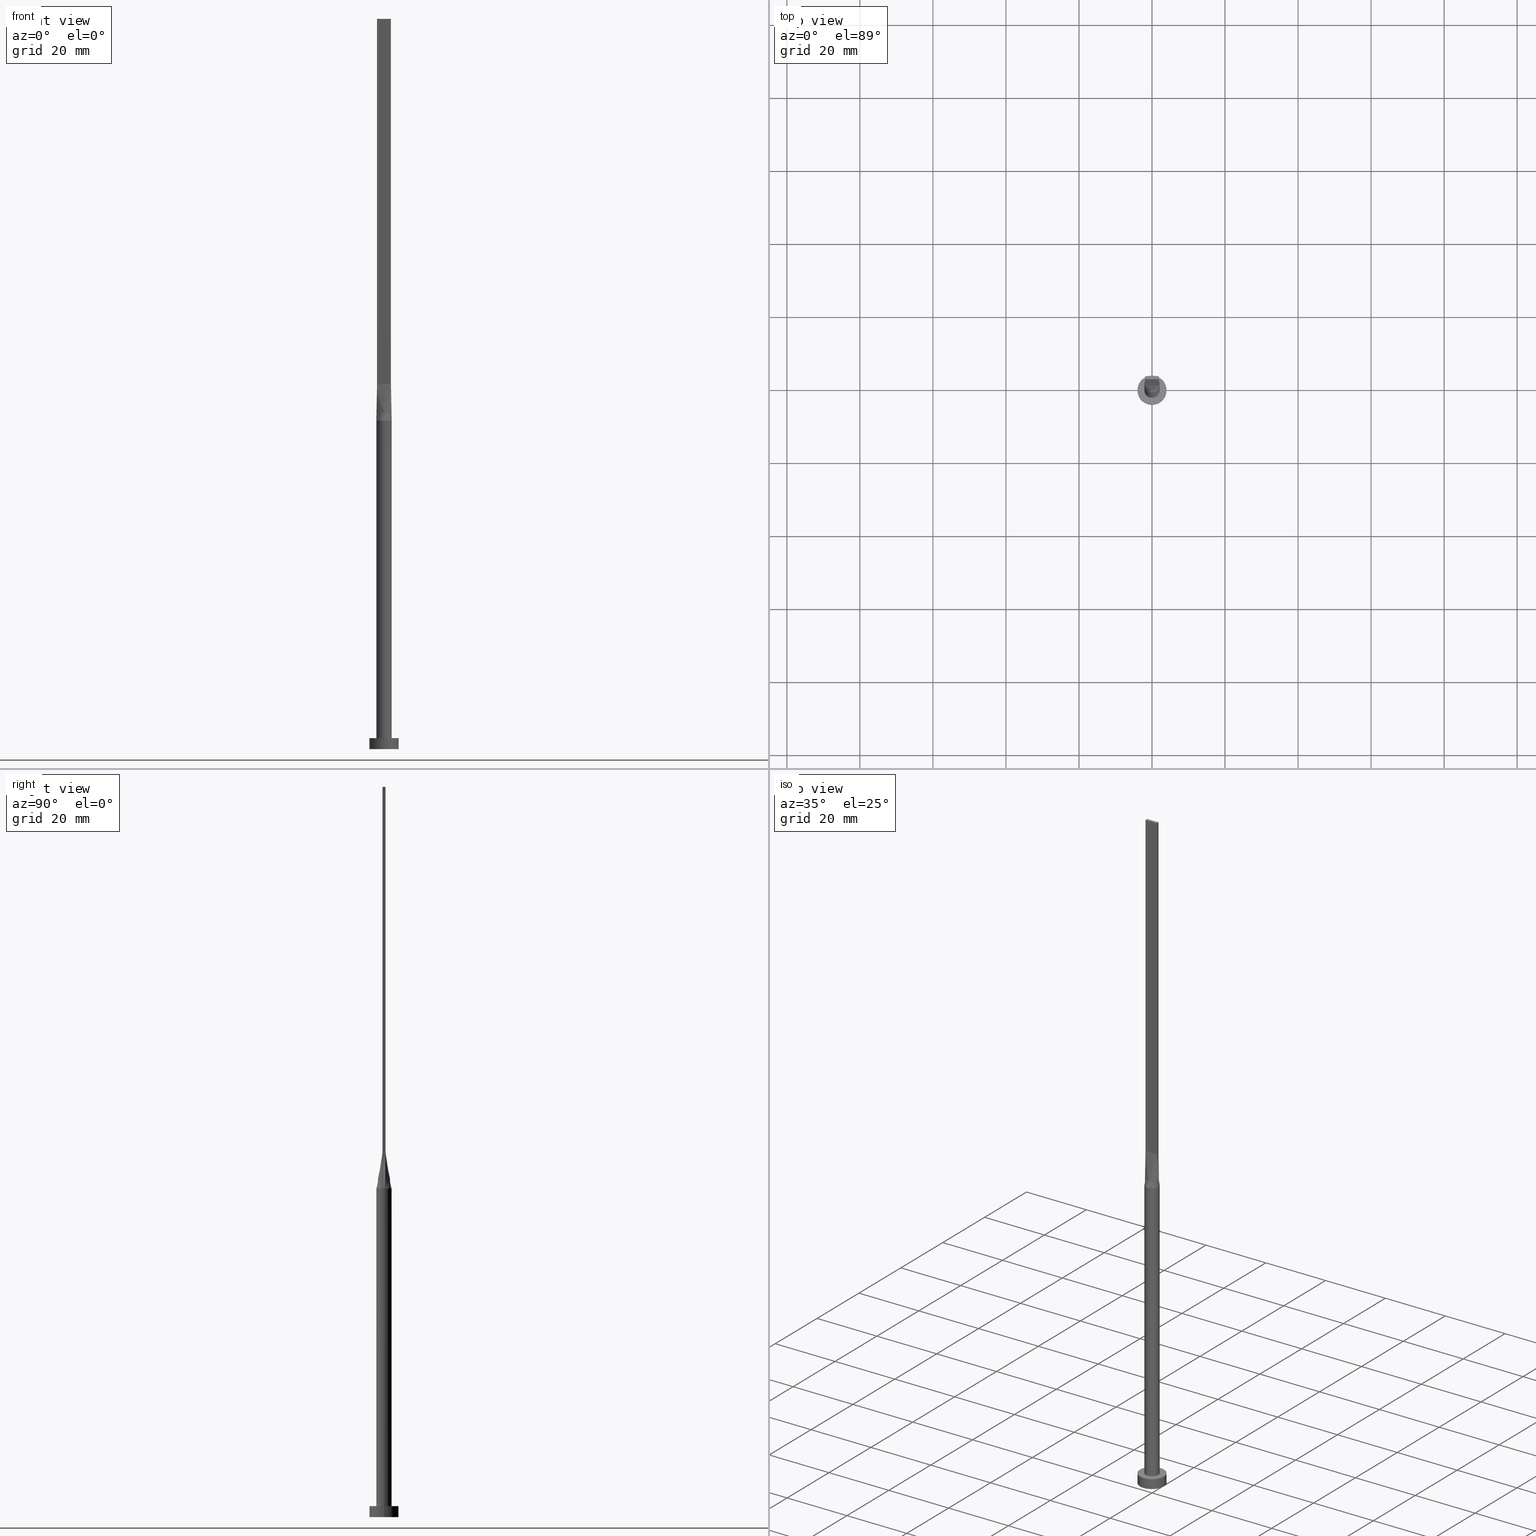
[diagram: canonical four-view strip — front | top / right | iso, engineering-drawing reading convention]
A machine part, canonical four-view strip (front | top / right | iso — engineering-drawing reading convention). The complete STEP part file that produces these views, byte-faithful:
ISO-10303-21;
HEADER;
FILE_DESCRIPTION (( 'STEP AP203' ),
    '1' );
FILE_NAME ('08fe.STEP',
    '2026-02-12T09:03:40',
    ( '' ),
    ( '' ),
    'SwSTEP 2.0',
    'SolidWorks 2019',
    '' );
FILE_SCHEMA (( 'CONFIG_CONTROL_DESIGN' ));
ENDSEC;

DATA;
#1 = EDGE_CURVE ( 'NONE', #110, #11, #487, .T. ) ;
#2 = LINE ( 'NONE', #228, #513 ) ;
#3 = EDGE_LOOP ( 'NONE', ( #247, #113, #163, #246, #300, #71 ) ) ;
#4 = CARTESIAN_POINT ( 'NONE',  ( -2.084662771283844585, 0.2915079518492303956, 90.00000000000000000 ) ) ;
#5 = DIRECTION ( 'NONE',  ( 1.000000000000000000, 0.000000000000000000, 0.000000000000000000 ) ) ;
#6 = AXIS2_PLACEMENT_3D ( 'NONE', #340, #556, #202 ) ;
#7 = PLANE ( 'NONE',  #49 ) ;
#8 = CARTESIAN_POINT ( 'NONE',  ( 0.000000000000000000, 0.000000000000000000, 90.00000000000000000 ) ) ;
#9 = EDGE_CURVE ( 'NONE', #345, #72, #37, .T. ) ;
#10 = DIRECTION ( 'NONE',  ( 0.000000000000000000, 0.000000000000000000, 1.000000000000000000 ) ) ;
#11 = VERTEX_POINT ( 'NONE', #492 ) ;
#12 = DIRECTION ( 'NONE',  ( 0.000000000000000000, 0.000000000000000000, 1.000000000000000000 ) ) ;
#13 = VERTEX_POINT ( 'NONE', #225 ) ;
#14 = SECURITY_CLASSIFICATION ( '', '', #111 ) ;
#15 = APPROVAL_ROLE ( '' ) ;
#16 = ORIENTED_EDGE ( 'NONE', *, *, #116, .T. ) ;
#17 =( NAMED_UNIT ( * ) PLANE_ANGLE_UNIT ( ) SI_UNIT ( $, .RADIAN. ) );
#18 = DIRECTION ( 'NONE',  ( -1.000000000000000000, 0.000000000000000000, 0.000000000000000000 ) ) ;
#19 = ADVANCED_FACE ( 'NONE', ( #60 ), #510, .T. ) ;
#20 = CARTESIAN_POINT ( 'NONE',  ( 1.899999999999999689, 0.4000000000000002442, 99.99999999999998579 ) ) ;
#21 = VECTOR ( 'NONE', #337, 1000.000000000000227 ) ;
#22 = AXIS2_PLACEMENT_3D ( 'NONE', #101, #279, #541 ) ;
#23 = CYLINDRICAL_SURFACE ( 'NONE', #6, 4.000000000000000000 ) ;
#24 = ORIENTED_EDGE ( 'NONE', *, *, #508, .T. ) ;
#25 = ADVANCED_FACE ( 'NONE', ( #465 ), #144, .T. ) ;
#26 = FACE_OUTER_BOUND ( 'NONE', #193, .T. ) ;
#27 = ORIENTED_EDGE ( 'NONE', *, *, #175, .F. ) ;
#28 = LINE ( 'NONE', #469, #480 ) ;
#29 = CARTESIAN_POINT ( 'NONE',  ( 2.054954548472173403, 0.4326220102046680616, 90.00000000000000000 ) ) ;
#30 = ORIENTED_EDGE ( 'NONE', *, *, #9, .F. ) ;
#31 = VECTOR ( 'NONE', #89, 1000.000000000000000 ) ;
#32 = PERSON_AND_ORGANIZATION ( #522, #121 ) ;
#33 = APPROVAL_PERSON_ORGANIZATION ( #531, #165, #128 ) ;
#34 = CARTESIAN_POINT ( 'NONE',  ( -1.288188016604684627, -1.676316068528187930, 89.99999999999998579 ) ) ;
#35 = EDGE_CURVE ( 'NONE', #393, #400, #97, .T. ) ;
#36 = CARTESIAN_POINT ( 'NONE',  ( 1.741666666666666030, -0.3999999999999997446, 99.99999999999997158 ) ) ;
#37 = LINE ( 'NONE', #220, #551 ) ;
#38 = CARTESIAN_POINT ( 'NONE',  ( 0.6333333333333346360, -0.3999999999999997446, 99.99999999999997158 ) ) ;
#39 = VECTOR ( 'NONE', #257, 1000.000000000000000 ) ;
#40 = LINE ( 'NONE', #449, #221 ) ;
#41 = PERSON_AND_ORGANIZATION ( #522, #121 ) ;
#42 = EDGE_CURVE ( 'NONE', #393, #345, #507, .T. ) ;
#43 = EDGE_LOOP ( 'NONE', ( #142, #511, #224, #570, #463, #562 ) ) ;
#44 = CARTESIAN_POINT ( 'NONE',  ( 0.2839879338753495963, -2.100000000000000533, 89.99999999999998579 ) ) ;
#45 = CARTESIAN_POINT ( 'NONE',  ( -1.960396204527856456, 0.7808940436533434726, 90.00000000000004263 ) ) ;
#46 = EDGE_LOOP ( 'NONE', ( #521, #558, #212, #27 ) ) ;
#47 = EDGE_LOOP ( 'NONE', ( #441, #203 ) ) ;
#48 = CARTESIAN_POINT ( 'NONE',  ( -1.899999999999999689, 0.4000000000000002442, 200.0000000000000000 ) ) ;
#49 = AXIS2_PLACEMENT_3D ( 'NONE', #499, #130, #181 ) ;
#50 = LINE ( 'NONE', #230, #339 ) ;
#51 = CARTESIAN_POINT ( 'NONE',  ( -1.899999999999999911, -0.3999999999999995781, 200.0000000000000000 ) ) ;
#52 = EDGE_CURVE ( 'NONE', #379, #11, #265, .T. ) ;
#53 = DIRECTION ( 'NONE',  ( 1.000000000000000000, 0.000000000000000000, 0.000000000000000000 ) ) ;
#54 = DIRECTION ( 'NONE',  ( -0.000000000000000000, -0.000000000000000000, -1.000000000000000000 ) ) ;
#55 = APPLICATION_PROTOCOL_DEFINITION ( 'international standard', 'config_control_design', 1994, #182 ) ;
#56 = CARTESIAN_POINT ( 'NONE',  ( -1.899999999999999689, 0.4000000000000002442, 99.99999999999998579 ) ) ;
#57 = CARTESIAN_POINT ( 'NONE',  ( -1.769939800381045147, 1.149026496286139842, 90.00000000000002842 ) ) ;
#58 = CIRCLE ( 'NONE', #390, 2.100000000000000089 ) ;
#59 = B_SPLINE_SURFACE_WITH_KNOTS ( 'NONE', 3, 1, ( 
 ( #344, #289 ),
 ( #207, #475 ),
 ( #253, #439 ),
 ( #70, #433 ),
 ( #520, #437 ),
 ( #34, #214 ),
 ( #396, #349 ),
 ( #218, #248 ),
 ( #252, #578 ),
 ( #44, #119 ),
 ( #215, #402 ),
 ( #529, #38 ),
 ( #436, #129 ),
 ( #77, #438 ),
 ( #213, #482 ),
 ( #126, #395 ),
 ( #523, #36 ),
 ( #305, #489 ) ),
 .UNSPECIFIED., .F., .F., .F.,
 ( 4, 2, 2, 2, 2, 2, 2, 2, 4 ),
 ( 2, 2 ),
 ( 0.000000000000000000, 0.1250000000000000833, 0.2500000000000001110, 0.3750000000000001110, 0.5000000000000001110, 0.6250000000000001110, 0.7500000000000000000, 0.8750000000000000000, 1.000000000000000000 ),
 ( 0.000000000000000000, 1.000000000000000000 ),
 .UNSPECIFIED. ) ;
#60 = FACE_OUTER_BOUND ( 'NONE', #3, .T. ) ;
#61 = CC_DESIGN_PERSON_AND_ORGANIZATION_ASSIGNMENT ( #32, #399, ( #263 ) ) ;
#62 = DIRECTION ( 'NONE',  ( -0.000000000000000000, -0.000000000000000000, -1.000000000000000000 ) ) ;
#63 = ADVANCED_FACE ( 'NONE', ( #316 ), #500, .F. ) ;
#64 = VERTEX_POINT ( 'NONE', #545 ) ;
#65 = APPROVAL_PERSON_ORGANIZATION ( #346, #108, #258 ) ;
#66 = CIRCLE ( 'NONE', #330, 4.000000000000000000 ) ;
#67 = CARTESIAN_POINT ( 'NONE',  ( 4.000000000000000000, 4.898587196589412829E-16, 3.000000000000000000 ) ) ;
#68 = ORIENTED_EDGE ( 'NONE', *, *, #206, .T. ) ;
#69 = CARTESIAN_POINT ( 'NONE',  ( -2.055145036631130129, -0.4326623253166036465, 90.00000000000000000 ) ) ;
#70 = CARTESIAN_POINT ( 'NONE',  ( -1.769939800381044481, -1.149026496286139176, 90.00000000000000000 ) ) ;
#71 = ORIENTED_EDGE ( 'NONE', *, *, #417, .F. ) ;
#72 = VERTEX_POINT ( 'NONE', #505 ) ;
#73 = AXIS2_PLACEMENT_3D ( 'NONE', #407, #539, #137 ) ;
#74 = EDGE_CURVE ( 'NONE', #125, #561, #95, .T. ) ;
#75 = CARTESIAN_POINT ( 'NONE',  ( 2.100000000000000089, 2.571758278209441957E-16, 3.000000000000000000 ) ) ;
#76 = CARTESIAN_POINT ( 'NONE',  ( 2.054954548472172959, -0.4326220102046691163, 90.00000000000000000 ) ) ;
#77 = CARTESIAN_POINT ( 'NONE',  ( 1.638039177766651200, -1.336522195786985279, 90.00000000000001421 ) ) ;
#78 = CARTESIAN_POINT ( 'NONE',  ( -2.099516882689679953, 0.1457539759246153366, 90.00000000000000000 ) ) ;
#79 = CARTESIAN_POINT ( 'NONE',  ( -1.899999999999999911, -0.3999999999999995781, 99.99999999999998579 ) ) ;
#80 = ORIENTED_EDGE ( 'NONE', *, *, #151, .T. ) ;
#81 = DIRECTION ( 'NONE',  ( 0.000000000000000000, 0.000000000000000000, 1.000000000000000000 ) ) ;
#82 = CARTESIAN_POINT ( 'NONE',  ( -1.899999999999999467, 0.1333333333333336368, 99.99999999999997158 ) ) ;
#83 = EDGE_CURVE ( 'NONE', #400, #474, #473, .T. ) ;
#84 = CIRCLE ( 'NONE', #311, 2.100000000000000089 ) ;
#85 = CARTESIAN_POINT ( 'NONE',  ( -1.899999999999999689, 0.4000000000000002442, 99.99999999999998579 ) ) ;
#86 = DIRECTION ( 'NONE',  ( 1.000000000000000000, 0.000000000000000000, 0.000000000000000000 ) ) ;
#87 = CARTESIAN_POINT ( 'NONE',  ( -1.741666666666666474, 0.4000000000000002442, 99.99999999999998579 ) ) ;
#88 = DIRECTION ( 'NONE',  ( 1.000000000000000000, 0.000000000000000000, 0.000000000000000000 ) ) ;
#89 = DIRECTION ( 'NONE',  ( -2.710505431213761578E-16, -1.000000000000000000, 0.000000000000000000 ) ) ;
#90 = CARTESIAN_POINT ( 'NONE',  ( 2.100000000000000089, 2.571758278209441957E-16, 90.00000000000000000 ) ) ;
#91 = ADVANCED_FACE ( 'NONE', ( #26 ), #432, .T. ) ;
#92 = CC_DESIGN_APPROVAL ( #165, ( #263 ) ) ;
#93 = DIRECTION ( 'NONE',  ( 1.000000000000000000, 0.000000000000000000, 0.000000000000000000 ) ) ;
#94 =( NAMED_UNIT ( * ) SI_UNIT ( $, .STERADIAN. ) SOLID_ANGLE_UNIT ( ) );
#95 = LINE ( 'NONE', #275, #527 ) ;
#96 = VECTOR ( 'NONE', #139, 1000.000000000000227 ) ;
#97 = LINE ( 'NONE', #90, #271 ) ;
#98 = UNCERTAINTY_MEASURE_WITH_UNIT (LENGTH_MEASURE( 1.000000000000000082E-05 ), #321, 'distance_accuracy_value', 'NONE');
#99 = EDGE_LOOP ( 'NONE', ( #450, #421, #453, #24 ) ) ;
#100 = CARTESIAN_POINT ( 'NONE',  ( -0.6333333333333331927, 0.4000000000000001887, 99.99999999999997158 ) ) ;
#101 = CARTESIAN_POINT ( 'NONE',  ( 0.000000000000000000, 0.000000000000000000, 90.00000000000000000 ) ) ;
#102 = DATE_TIME_ROLE ( 'classification_date' ) ;
#103 = VERTEX_POINT ( 'NONE', #502 ) ;
#104 = LOCAL_TIME ( 10, 3, 40.00000000000000000, #444 ) ;
#105 = CARTESIAN_POINT ( 'NONE',  ( -2.055148177435248691, 0.4326628259079252081, 90.00000000000000000 ) ) ;
#106 = SHAPE_DEFINITION_REPRESENTATION ( #568, #281 ) ;
#107 = DIRECTION ( 'NONE',  ( -1.000000000000000000, 0.000000000000000000, 0.000000000000000000 ) ) ;
#108 = APPROVAL ( #117, 'NEUR�EN�' ) ;
#109 = AXIS2_PLACEMENT_3D ( 'NONE', #415, #411, #364 ) ;
#110 = VERTEX_POINT ( 'NONE', #409 ) ;
#111 = SECURITY_CLASSIFICATION_LEVEL ( 'unclassified' ) ;
#112 = DIRECTION ( 'NONE',  ( 1.000000000000000000, 0.000000000000000000, -0.000000000000000000 ) ) ;
#113 = ORIENTED_EDGE ( 'NONE', *, *, #35, .T. ) ;
#114 = CARTESIAN_POINT ( 'NONE',  ( 1.069497409764671003, 1.827724181718572538, 90.00000000000001421 ) ) ;
#115 = VERTEX_POINT ( 'NONE', #273 ) ;
#116 = EDGE_CURVE ( 'NONE', #537, #501, #242, .T. ) ;
#117 = APPROVAL_STATUS ( 'not_yet_approved' ) ;
#118 = CALENDAR_DATE ( 2026, 12, 2 ) ;
#119 = CARTESIAN_POINT ( 'NONE',  ( 0.1583333333333348247, -0.3999999999999996336, 99.99999999999995737 ) ) ;
#120 = CARTESIAN_POINT ( 'NONE',  ( -4.000000000000000000, 0.000000000000000000, 3.000000000000000000 ) ) ;
#121 = ORGANIZATION ( 'NEUR�EN�', 'NEUR�EN�', '' ) ;
#122 = LINE ( 'NONE', #533, #413 ) ;
#123 = CALENDAR_DATE ( 2026, 12, 2 ) ;
#124 = CARTESIAN_POINT ( 'NONE',  ( 2.084662771283844140, -0.2915079518492312838, 90.00000000000000000 ) ) ;
#125 = VERTEX_POINT ( 'NONE', #319 ) ;
#126 = CARTESIAN_POINT ( 'NONE',  ( 1.960396204527856234, -0.7808940436533445828, 90.00000000000001421 ) ) ;
#127 = EDGE_CURVE ( 'NONE', #103, #115, #66, .T. ) ;
#128 = APPROVAL_ROLE ( '' ) ;
#129 = CARTESIAN_POINT ( 'NONE',  ( 0.7916666666666677399, -0.3999999999999997446, 99.99999999999997158 ) ) ;
#130 = DIRECTION ( 'NONE',  ( 0.000000000000000000, 0.000000000000000000, 1.000000000000000000 ) ) ;
#131 = AXIS2_PLACEMENT_3D ( 'NONE', #534, #227, #93 ) ;
#132 = CC_DESIGN_APPROVAL ( #108, ( #368 ) ) ;
#133 = DIRECTION ( 'NONE',  ( 0.000000000000000000, 0.000000000000000000, 1.000000000000000000 ) ) ;
#134 = DIRECTION ( 'NONE',  ( -1.000000000000000000, -0.000000000000000000, -0.000000000000000000 ) ) ;
#135 = EDGE_LOOP ( 'NONE', ( #152, #194 ) ) ;
#136 = FACE_OUTER_BOUND ( 'NONE', #286, .T. ) ;
#137 = DIRECTION ( 'NONE',  ( -1.000000000000000000, 0.000000000000000000, 0.000000000000000000 ) ) ;
#138 = CARTESIAN_POINT ( 'NONE',  ( -2.019676033883313959, 0.6001949545017503107, 90.00000000000000000 ) ) ;
#139 = DIRECTION ( 'NONE',  ( -0.01549351246150995794, 0.003261792097160017348, 0.9998746480354023802 ) ) ;
#140 = ADVANCED_FACE ( 'NONE', ( #496 ), #418, .F. ) ;
#141 = FACE_OUTER_BOUND ( 'NONE', #497, .T. ) ;
#142 = ORIENTED_EDGE ( 'NONE', *, *, #35, .F. ) ;
#143 = CARTESIAN_POINT ( 'NONE',  ( 2.054954548472172959, 0.4326220102046685612, 90.00000000000000000 ) ) ;
#144 = CYLINDRICAL_SURFACE ( 'NONE', #457, 2.100000000000000089 ) ;
#145 = PRODUCT_RELATED_PRODUCT_CATEGORY ( 'detail', '', ( #162 ) ) ;
#146 = LOCAL_TIME ( 10, 3, 40.00000000000000000, #555 ) ;
#147 = DIRECTION ( 'NONE',  ( 1.000000000000000000, -8.881784197001252323E-16, 0.000000000000000000 ) ) ;
#148 = CLOSED_SHELL ( 'NONE', ( #19, #361, #484, #515, #385, #25, #398, #563, #526, #91, #63, #296, #140, #498, #217 ) ) ;
#149 = CALENDAR_DATE ( 2026, 12, 2 ) ;
#150 = CARTESIAN_POINT ( 'NONE',  ( -0.2839879338753505955, 2.100000000000000533, 89.99999999999997158 ) ) ;
#151 = EDGE_CURVE ( 'NONE', #72, #561, #460, .T. ) ;
#152 = ORIENTED_EDGE ( 'NONE', *, *, #351, .F. ) ;
#153 = CARTESIAN_POINT ( 'NONE',  ( -0.7916666666666665186, 0.4000000000000002442, 99.99999999999998579 ) ) ;
#154 = VECTOR ( 'NONE', #204, 1000.000000000000000 ) ;
#155 = CARTESIAN_POINT ( 'NONE',  ( -2.100000000000000089, 0.000000000000000000, 90.00000000000000000 ) ) ;
#156 = CARTESIAN_POINT ( 'NONE',  ( -0.1583333333333332704, 0.4000000000000001887, 99.99999999999997158 ) ) ;
#157 = DATE_AND_TIME ( #149, #146 ) ;
#158 = CARTESIAN_POINT ( 'NONE',  ( 2.019676033883313515, 0.6001949545017501997, 90.00000000000001421 ) ) ;
#159 = EDGE_LOOP ( 'NONE', ( #196, #179, #291, #488 ) ) ;
#160 = CARTESIAN_POINT ( 'NONE',  ( 1.899999999999999023, -0.3999999999999998002, 200.0000000000000000 ) ) ;
#161 = ORIENTED_EDGE ( 'NONE', *, *, #557, .F. ) ;
#162 = PRODUCT ( '08fe', '08fe', '', ( #553 ) ) ;
#163 = ORIENTED_EDGE ( 'NONE', *, *, #83, .T. ) ;
#164 = LINE ( 'NONE', #241, #414 ) ;
#165 = APPROVAL ( #528, 'NEUR�EN�' ) ;
#166 = ORIENTED_EDGE ( 'NONE', *, *, #52, .F. ) ;
#167 = DATE_TIME_ROLE ( 'creation_date' ) ;
#168 = CARTESIAN_POINT ( 'NONE',  ( 1.960396204527856900, 0.7808940436533436946, 90.00000000000001421 ) ) ;
#169 = CARTESIAN_POINT ( 'NONE',  ( -2.099516882689679953, -0.1457539759246147815, 90.00000000000000000 ) ) ;
#170 = COORDINATED_UNIVERSAL_TIME_OFFSET ( 1, 0, .AHEAD. ) ;
#171 = COORDINATED_UNIVERSAL_TIME_OFFSET ( 1, 0, .AHEAD. ) ;
#172 = PLANE ( 'NONE',  #353 ) ;
#173 = AXIS2_PLACEMENT_3D ( 'NONE', #429, #195, #467 ) ;
#174 = CALENDAR_DATE ( 2026, 12, 2 ) ;
#175 = EDGE_CURVE ( 'NONE', #537, #103, #185, .T. ) ;
#176 = CARTESIAN_POINT ( 'NONE',  ( -0.2839879338753505955, 2.100000000000000533, 89.99999999999997158 ) ) ;
#177 = CARTESIAN_POINT ( 'NONE',  ( -2.019676033883313959, 0.6001949545017503107, 90.00000000000000000 ) ) ;
#178 = CARTESIAN_POINT ( 'NONE',  ( -2.054954548472173403, 0.4326220102046679505, 90.00000000000000000 ) ) ;
#179 = ORIENTED_EDGE ( 'NONE', *, *, #201, .F. ) ;
#180 = PLANE ( 'NONE',  #548 ) ;
#181 = DIRECTION ( 'NONE',  ( 1.000000000000000000, 0.000000000000000000, -0.000000000000000000 ) ) ;
#182 = APPLICATION_CONTEXT ( 'configuration controlled 3d designs of mechanical parts and assemblies' ) ;
#183 = CIRCLE ( 'NONE', #535, 2.100000000000000089 ) ;
#184 = CYLINDRICAL_SURFACE ( 'NONE', #73, 4.000000000000000000 ) ;
#185 = LINE ( 'NONE', #543, #403 ) ;
#186 = EDGE_CURVE ( 'NONE', #379, #393, #183, .T. ) ;
#187 = CARTESIAN_POINT ( 'NONE',  ( 2.055132260641998609, 0.4326595789354660826, 90.00000000000000000 ) ) ;
#188 = CARTESIAN_POINT ( 'NONE',  ( -1.583333333333333037, 0.4000000000000002442, 99.99999999999998579 ) ) ;
#189 = ORIENTED_EDGE ( 'NONE', *, *, #546, .F. ) ;
#190 = CARTESIAN_POINT ( 'NONE',  ( 2.099516882689679953, 0.1457539759246152533, 90.00000000000000000 ) ) ;
#191 = DIRECTION ( 'NONE',  ( 0.000000000000000000, -1.000000000000000000, 0.000000000000000000 ) ) ;
#192 = DIRECTION ( 'NONE',  ( 0.000000000000000000, 0.000000000000000000, 1.000000000000000000 ) ) ;
#193 = EDGE_LOOP ( 'NONE', ( #389, #519, #378, #30 ) ) ;
#194 = ORIENTED_EDGE ( 'NONE', *, *, #83, .F. ) ;
#195 = DIRECTION ( 'NONE',  ( 0.000000000000000000, 0.000000000000000000, 1.000000000000000000 ) ) ;
#196 = ORIENTED_EDGE ( 'NONE', *, *, #1, .T. ) ;
#197 = VECTOR ( 'NONE', #107, 1000.000000000000000 ) ;
#198 = FACE_OUTER_BOUND ( 'NONE', #386, .T. ) ;
#199 = CIRCLE ( 'NONE', #173, 4.000000000000000000 ) ;
#200 = AXIS2_PLACEMENT_3D ( 'NONE', #456, #191, #373 ) ;
#201 = EDGE_CURVE ( 'NONE', #419, #11, #452, .T. ) ;
#202 = DIRECTION ( 'NONE',  ( -1.000000000000000000, 0.000000000000000000, 0.000000000000000000 ) ) ;
#203 = ORIENTED_EDGE ( 'NONE', *, *, #317, .F. ) ;
#204 = DIRECTION ( 'NONE',  ( -0.000000000000000000, -0.000000000000000000, -1.000000000000000000 ) ) ;
#205 = ORIENTED_EDGE ( 'NONE', *, *, #274, .T. ) ;
#206 = EDGE_CURVE ( 'NONE', #360, #320, #2, .T. ) ;
#207 = CARTESIAN_POINT ( 'NONE',  ( -2.019676033883314403, -0.6001949545017496446, 90.00000000000001421 ) ) ;
#208 = CIRCLE ( 'NONE', #131, 2.100000000000000089 ) ;
#209 = EDGE_LOOP ( 'NONE', ( #372, #240, #410, #262 ) ) ;
#210 = CALENDAR_DATE ( 2026, 12, 2 ) ;
#211 = PERSON_AND_ORGANIZATION_ROLE ( 'design_supplier' ) ;
#212 = ORIENTED_EDGE ( 'NONE', *, *, #317, .T. ) ;
#213 = CARTESIAN_POINT ( 'NONE',  ( 1.769939800381043815, -1.149026496286140731, 90.00000000000001421 ) ) ;
#214 = CARTESIAN_POINT ( 'NONE',  ( -0.7916666666666649643, -0.3999999999999996336, 99.99999999999995737 ) ) ;
#215 = CARTESIAN_POINT ( 'NONE',  ( 0.5670887265440289760, -2.040296735810464668, 90.00000000000001421 ) ) ;
#216 = PERSON_AND_ORGANIZATION_ROLE ( 'design_owner' ) ;
#217 = ADVANCED_FACE ( 'NONE', ( #412 ), #7, .T. ) ;
#218 = CARTESIAN_POINT ( 'NONE',  ( -0.5670887265440306413, -2.040296735810464668, 90.00000000000001421 ) ) ;
#219 = CARTESIAN_POINT ( 'NONE',  ( 0.000000000000000000, 0.000000000000000000, 0.000000000000000000 ) ) ;
#220 = CARTESIAN_POINT ( 'NONE',  ( 1.977477274236086213, 0.4163110051023343749, 95.00000000000000000 ) ) ;
#221 = VECTOR ( 'NONE', #223, 1000.000000000000000 ) ;
#222 = CARTESIAN_POINT ( 'NONE',  ( -1.069497409764671003, 1.827724181718571872, 89.99999999999998579 ) ) ;
#223 = DIRECTION ( 'NONE',  ( -0.000000000000000000, -0.000000000000000000, -1.000000000000000000 ) ) ;
#224 = ORIENTED_EDGE ( 'NONE', *, *, #336, .F. ) ;
#225 = CARTESIAN_POINT ( 'NONE',  ( -2.099758441344840243, -1.448674240509545331E-15, 90.00000000000000000 ) ) ;
#226 = CC_DESIGN_DATE_AND_TIME_ASSIGNMENT ( #571, #167, ( #263 ) ) ;
#227 = DIRECTION ( 'NONE',  ( 0.000000000000000000, 0.000000000000000000, 1.000000000000000000 ) ) ;
#228 = CARTESIAN_POINT ( 'NONE',  ( -1.899999999999999689, 0.4000000000000002442, 200.0000000000000000 ) ) ;
#229 = CARTESIAN_POINT ( 'NONE',  ( 1.977477274236086213, -0.4163110051023340419, 95.00000000000000000 ) ) ;
#230 = CARTESIAN_POINT ( 'NONE',  ( 1.899999999999999023, -0.3999999999999998002, 200.0000000000000000 ) ) ;
#231 = CARTESIAN_POINT ( 'NONE',  ( 1.899999999999999023, -0.3999999999999998002, 200.0000000000000000 ) ) ;
#232 = CARTESIAN_POINT ( 'NONE',  ( 0.000000000000000000, 0.000000000000000000, 90.00000000000000000 ) ) ;
#233 = ORIENTED_EDGE ( 'NONE', *, *, #74, .F. ) ;
#234 = DIRECTION ( 'NONE',  ( 0.01549351246150993712, -0.003261792097159904157, 0.9998746480354023802 ) ) ;
#235 = EDGE_CURVE ( 'NONE', #561, #110, #495, .T. ) ;
#236 = DIRECTION ( 'NONE',  ( -0.000000000000000000, -0.000000000000000000, -1.000000000000000000 ) ) ;
#237 = DIRECTION ( 'NONE',  ( -0.000000000000000000, -0.000000000000000000, -1.000000000000000000 ) ) ;
#238 = PLANE ( 'NONE',  #269 ) ;
#239 = CARTESIAN_POINT ( 'NONE',  ( -0.5670887265440298641, 2.040296735810464668, 90.00000000000002842 ) ) ;
#240 = ORIENTED_EDGE ( 'NONE', *, *, #116, .F. ) ;
#241 = CARTESIAN_POINT ( 'NONE',  ( -1.899999999999999911, -0.3999999999999995781, 200.0000000000000000 ) ) ;
#242 = CIRCLE ( 'NONE', #323, 4.000000000000000000 ) ;
#243 = PERSON_AND_ORGANIZATION ( #522, #121 ) ;
#244 = LINE ( 'NONE', #560, #21 ) ;
#245 = CARTESIAN_POINT ( 'NONE',  ( 1.583333333333333259, 0.4000000000000002442, 99.99999999999998579 ) ) ;
#246 = ORIENTED_EDGE ( 'NONE', *, *, #424, .F. ) ;
#247 = ORIENTED_EDGE ( 'NONE', *, *, #42, .F. ) ;
#248 = CARTESIAN_POINT ( 'NONE',  ( -0.3166666666666649865, -0.3999999999999996336, 99.99999999999997158 ) ) ;
#249 = AXIS2_PLACEMENT_3D ( 'NONE', #219, #81, #112 ) ;
#250 = LOCAL_TIME ( 10, 3, 40.00000000000000000, #171 ) ;
#251 = DATE_AND_TIME ( #118, #392 ) ;
#252 = CARTESIAN_POINT ( 'NONE',  ( -0.2839879338753514282, -2.100000000000000533, 90.00000000000000000 ) ) ;
#253 = CARTESIAN_POINT ( 'NONE',  ( -1.960396204527856456, -0.7808940436533431395, 90.00000000000000000 ) ) ;
#254 = CARTESIAN_POINT ( 'NONE',  ( -2.054954548472173403, -0.4326220102046674509, 90.00000000000000000 ) ) ;
#255 = CARTESIAN_POINT ( 'NONE',  ( 0.2839879338753505955, 2.100000000000000533, 90.00000000000000000 ) ) ;
#256 = CARTESIAN_POINT ( 'NONE',  ( 2.099516882689679953, -0.1457539759246157252, 90.00000000000000000 ) ) ;
#257 = DIRECTION ( 'NONE',  ( 1.000000000000000000, -5.706327223607918787E-17, 0.000000000000000000 ) ) ;
#258 = APPROVAL_ROLE ( '' ) ;
#259 = CARTESIAN_POINT ( 'NONE',  ( 1.769939800381044259, 1.149026496286139620, 89.99999999999997158 ) ) ;
#260 = VECTOR ( 'NONE', #363, 1000.000000000000000 ) ;
#261 = PERSON_AND_ORGANIZATION ( #522, #121 ) ;
#262 = ORIENTED_EDGE ( 'NONE', *, *, #127, .T. ) ;
#263 = PRODUCT_DEFINITION ( 'NEZN�M�', '', #368, #287 ) ;
#264 = CARTESIAN_POINT ( 'NONE',  ( -1.899999999999999911, -0.3999999999999995781, 200.0000000000000000 ) ) ;
#265 = LINE ( 'NONE', #229, #96 ) ;
#266 = CC_DESIGN_PERSON_AND_ORGANIZATION_ASSIGNMENT ( #41, #211, ( #368 ) ) ;
#267 = DIRECTION ( 'NONE',  ( 1.000000000000000000, 0.000000000000000000, 0.000000000000000000 ) ) ;
#268 = VECTOR ( 'NONE', #236, 1000.000000000000000 ) ;
#269 = AXIS2_PLACEMENT_3D ( 'NONE', #160, #427, #387 ) ;
#270 = ORIENTED_EDGE ( 'NONE', *, *, #462, .T. ) ;
#271 = VECTOR ( 'NONE', #237, 1000.000000000000000 ) ;
#272 = CARTESIAN_POINT ( 'NONE',  ( -1.899999999999999689, 0.4000000000000002442, 200.0000000000000000 ) ) ;
#273 = CARTESIAN_POINT ( 'NONE',  ( 4.000000000000000000, 4.898587196589412829E-16, 0.000000000000000000 ) ) ;
#274 = EDGE_CURVE ( 'NONE', #125, #13, #367, .T. ) ;
#275 = CARTESIAN_POINT ( 'NONE',  ( -1.977477274236086657, 0.4163110051023338753, 95.00000000000000000 ) ) ;
#276 = CARTESIAN_POINT ( 'NONE',  ( 0.000000000000000000, 0.000000000000000000, 90.00000000000000000 ) ) ;
#277 = ORIENTED_EDGE ( 'NONE', *, *, #405, .T. ) ;
#278 = CARTESIAN_POINT ( 'NONE',  ( -1.288188016604684183, 1.676316068528189263, 90.00000000000002842 ) ) ;
#279 = DIRECTION ( 'NONE',  ( -0.000000000000000000, -0.000000000000000000, -1.000000000000000000 ) ) ;
#280 = CARTESIAN_POINT ( 'NONE',  ( 1.741666666666666474, 0.4000000000000002442, 99.99999999999998579 ) ) ;
#281 = ADVANCED_BREP_SHAPE_REPRESENTATION ( '08fe', ( #525, #382 ), #322 ) ;
#282 = CC_DESIGN_PERSON_AND_ORGANIZATION_ASSIGNMENT ( #261, #447, ( #368 ) ) ;
#283 = ORIENTED_EDGE ( 'NONE', *, *, #546, .T. ) ;
#284 = CARTESIAN_POINT ( 'NONE',  ( 1.960396204527856900, 0.7808940436533436946, 90.00000000000001421 ) ) ;
#285 = EDGE_CURVE ( 'NONE', #320, #419, #455, .T. ) ;
#286 = EDGE_LOOP ( 'NONE', ( #205, #559, #343, #342, #233 ) ) ;
#287 = DESIGN_CONTEXT ( 'detailed design', #384, 'design' ) ;
#288 = PERSON_AND_ORGANIZATION_ROLE ( 'classification_officer' ) ;
#289 = CARTESIAN_POINT ( 'NONE',  ( -1.899999999999999911, -0.3999999999999995781, 99.99999999999998579 ) ) ;
#290 = CARTESIAN_POINT ( 'NONE',  ( 1.638039177766652754, 1.336522195786985057, 90.00000000000002842 ) ) ;
#291 = ORIENTED_EDGE ( 'NONE', *, *, #285, .F. ) ;
#292 = FACE_OUTER_BOUND ( 'NONE', #99, .T. ) ;
#293 = ORIENTED_EDGE ( 'NONE', *, *, #42, .T. ) ;
#294 = CARTESIAN_POINT ( 'NONE',  ( 1.288188016604684183, 1.676316068528189041, 90.00000000000004263 ) ) ;
#295 = CARTESIAN_POINT ( 'NONE',  ( 0.000000000000000000, 0.000000000000000000, 3.000000000000000000 ) ) ;
#296 = ADVANCED_FACE ( 'NONE', ( #141 ), #180, .F. ) ;
#297 = DIRECTION ( 'NONE',  ( -2.710505431213761085E-16, 1.000000000000000000, -0.000000000000000000 ) ) ;
#298 = DATE_AND_TIME ( #123, #250 ) ;
#299 = DIRECTION ( 'NONE',  ( 0.000000000000000000, 0.000000000000000000, 1.000000000000000000 ) ) ;
#300 = ORIENTED_EDGE ( 'NONE', *, *, #274, .F. ) ;
#301 = APPROVAL_DATE_TIME ( #359, #108 ) ;
#302 = CARTESIAN_POINT ( 'NONE',  ( -1.899999999999999689, 0.4000000000000002442, 99.99999999999998579 ) ) ;
#303 = DIRECTION ( 'NONE',  ( -0.01549351246150989375, -0.003261792097160006506, 0.9998746480354023802 ) ) ;
#304 = ORIENTED_EDGE ( 'NONE', *, *, #201, .T. ) ;
#305 = CARTESIAN_POINT ( 'NONE',  ( 2.054954548472172959, -0.4326220102046682281, 90.00000000000000000 ) ) ;
#306 = FACE_OUTER_BOUND ( 'NONE', #46, .T. ) ;
#307 = CARTESIAN_POINT ( 'NONE',  ( 1.108333333333333393, 0.4000000000000002442, 99.99999999999998579 ) ) ;
#308 = CARTESIAN_POINT ( 'NONE',  ( 0.000000000000000000, 0.000000000000000000, 0.000000000000000000 ) ) ;
#309 = CARTESIAN_POINT ( 'NONE',  ( -1.899999999999999689, 0.4000000000000002442, 99.99999999999998579 ) ) ;
#310 = EDGE_CURVE ( 'NONE', #419, #64, #50, .T. ) ;
#311 = AXIS2_PLACEMENT_3D ( 'NONE', #8, #133, #86 ) ;
#312 = LOCAL_TIME ( 10, 3, 40.00000000000000000, #170 ) ;
#313 = DIRECTION ( 'NONE',  ( 0.000000000000000000, 0.000000000000000000, 1.000000000000000000 ) ) ;
#314 = CARTESIAN_POINT ( 'NONE',  ( 2.055161022591414977, -0.4326655822303633325, 90.00000000000000000 ) ) ;
#315 = DIRECTION ( 'NONE',  ( -1.000000000000000000, 5.706327223607920020E-17, 0.000000000000000000 ) ) ;
#316 = FACE_OUTER_BOUND ( 'NONE', #431, .T. ) ;
#317 = EDGE_CURVE ( 'NONE', #115, #103, #377, .T. ) ;
#318 = DIRECTION ( 'NONE',  ( 2.710505431213761578E-16, 1.000000000000000000, 0.000000000000000000 ) ) ;
#319 = CARTESIAN_POINT ( 'NONE',  ( -2.055148177435248691, 0.4326628259079252081, 90.00000000000000000 ) ) ;
#320 = VERTEX_POINT ( 'NONE', #451 ) ;
#321 =( LENGTH_UNIT ( ) NAMED_UNIT ( * ) SI_UNIT ( .MILLI., .METRE. ) );
#322 =( GEOMETRIC_REPRESENTATION_CONTEXT ( 3 ) GLOBAL_UNCERTAINTY_ASSIGNED_CONTEXT ( ( #98 ) ) GLOBAL_UNIT_ASSIGNED_CONTEXT ( ( #321, #17, #94 ) ) REPRESENTATION_CONTEXT ( 'NONE', 'WORKASPACE' ) );
#323 = AXIS2_PLACEMENT_3D ( 'NONE', #362, #313, #374 ) ;
#324 = CARTESIAN_POINT ( 'NONE',  ( -1.899999999999999689, 0.4000000000000002442, 99.99999999999998579 ) ) ;
#325 = ORIENTED_EDGE ( 'NONE', *, *, #206, .F. ) ;
#326 = CARTESIAN_POINT ( 'NONE',  ( -1.069497409764671003, 1.827724181718571872, 89.99999999999998579 ) ) ;
#327 = ORIENTED_EDGE ( 'NONE', *, *, #428, .T. ) ;
#328 = CARTESIAN_POINT ( 'NONE',  ( -1.266666666666666385, 0.4000000000000001887, 99.99999999999997158 ) ) ;
#329 = DIRECTION ( 'NONE',  ( 0.000000000000000000, 0.000000000000000000, 1.000000000000000000 ) ) ;
#330 = AXIS2_PLACEMENT_3D ( 'NONE', #308, #365, #371 ) ;
#331 = EDGE_CURVE ( 'NONE', #13, #434, #84, .T. ) ;
#332 = VECTOR ( 'NONE', #134, 1000.000000000000000 ) ;
#333 = CARTESIAN_POINT ( 'NONE',  ( 1.899999999999999023, -0.3999999999999998002, 200.0000000000000000 ) ) ;
#334 = CC_DESIGN_DATE_AND_TIME_ASSIGNMENT ( #251, #102, ( #14 ) ) ;
#335 = LINE ( 'NONE', #569, #197 ) ;
#336 = EDGE_CURVE ( 'NONE', #434, #379, #58, .T. ) ;
#337 = DIRECTION ( 'NONE',  ( -0.01549351246150991457, -0.003261792097159958367, -0.9998746480354023802 ) ) ;
#338 = ORIENTED_EDGE ( 'NONE', *, *, #405, .F. ) ;
#339 = VECTOR ( 'NONE', #579, 1000.000000000000000 ) ;
#340 = CARTESIAN_POINT ( 'NONE',  ( 0.000000000000000000, 0.000000000000000000, 3.000000000000000000 ) ) ;
#341 = CARTESIAN_POINT ( 'NONE',  ( 1.769939800381044259, 1.149026496286139620, 89.99999999999997158 ) ) ;
#342 = ORIENTED_EDGE ( 'NONE', *, *, #235, .F. ) ;
#343 = ORIENTED_EDGE ( 'NONE', *, *, #508, .F. ) ;
#344 = CARTESIAN_POINT ( 'NONE',  ( -2.054954548472173403, -0.4326220102046674509, 90.00000000000000000 ) ) ;
#345 = VERTEX_POINT ( 'NONE', #187 ) ;
#346 = PERSON_AND_ORGANIZATION ( #522, #121 ) ;
#347 = COORDINATED_UNIVERSAL_TIME_OFFSET ( 1, 0, .AHEAD. ) ;
#348 = CARTESIAN_POINT ( 'NONE',  ( 1.069497409764671003, 1.827724181718572538, 90.00000000000001421 ) ) ;
#349 = CARTESIAN_POINT ( 'NONE',  ( -0.6333333333333314163, -0.3999999999999996336, 99.99999999999997158 ) ) ;
#350 = CARTESIAN_POINT ( 'NONE',  ( -1.899999999999999689, -0.1333333333333329707, 99.99999999999997158 ) ) ;
#351 = EDGE_CURVE ( 'NONE', #474, #400, #208, .T. ) ;
#352 = CARTESIAN_POINT ( 'NONE',  ( -1.769939800381045147, 1.149026496286139842, 90.00000000000002842 ) ) ;
#353 = AXIS2_PLACEMENT_3D ( 'NONE', #295, #299, #532 ) ;
#354 = CARTESIAN_POINT ( 'NONE',  ( -2.084662771283844140, -0.2915079518492298405, 90.00000000000000000 ) ) ;
#355 = AXIS2_PLACEMENT_3D ( 'NONE', #276, #329, #88 ) ;
#356 = APPROVAL ( #426, 'NEUR�EN�' ) ;
#357 = CARTESIAN_POINT ( 'NONE',  ( -1.960396204527856456, 0.7808940436533434726, 90.00000000000004263 ) ) ;
#358 = PERSON_AND_ORGANIZATION ( #522, #121 ) ;
#359 = DATE_AND_TIME ( #174, #104 ) ;
#360 = VERTEX_POINT ( 'NONE', #272 ) ;
#361 = ADVANCED_FACE ( 'NONE', ( #306 ), #184, .T. ) ;
#362 = CARTESIAN_POINT ( 'NONE',  ( 0.000000000000000000, 0.000000000000000000, 3.000000000000000000 ) ) ;
#363 = DIRECTION ( 'NONE',  ( -0.000000000000000000, -0.000000000000000000, -1.000000000000000000 ) ) ;
#364 = DIRECTION ( 'NONE',  ( 1.000000000000000000, 0.000000000000000000, 0.000000000000000000 ) ) ;
#365 = DIRECTION ( 'NONE',  ( 0.000000000000000000, 0.000000000000000000, 1.000000000000000000 ) ) ;
#366 = ORIENTED_EDGE ( 'NONE', *, *, #9, .T. ) ;
#367 = CIRCLE ( 'NONE', #567, 2.100000000000000089 ) ;
#368 = PRODUCT_DEFINITION_FORMATION_WITH_SPECIFIED_SOURCE ( 'LIBOVOLN�', '', #162, .NOT_KNOWN. ) ;
#369 = CARTESIAN_POINT ( 'NONE',  ( 0.000000000000000000, 0.000000000000000000, 90.00000000000000000 ) ) ;
#370 = DIRECTION ( 'NONE',  ( 1.000000000000000000, -2.710505431213761578E-16, 0.000000000000000000 ) ) ;
#371 = DIRECTION ( 'NONE',  ( 1.000000000000000000, 0.000000000000000000, 0.000000000000000000 ) ) ;
#372 = ORIENTED_EDGE ( 'NONE', *, *, #443, .F. ) ;
#373 = DIRECTION ( 'NONE',  ( 0.000000000000000000, -0.000000000000000000, -1.000000000000000000 ) ) ;
#374 = DIRECTION ( 'NONE',  ( 1.000000000000000000, 0.000000000000000000, 0.000000000000000000 ) ) ;
#375 = CARTESIAN_POINT ( 'NONE',  ( 1.899999999999999689, -0.1333333333333332482, 99.99999999999997158 ) ) ;
#376 = DIRECTION ( 'NONE',  ( -0.000000000000000000, -0.000000000000000000, -1.000000000000000000 ) ) ;
#377 = CIRCLE ( 'NONE', #109, 4.000000000000000000 ) ;
#378 = ORIENTED_EDGE ( 'NONE', *, *, #151, .F. ) ;
#379 = VERTEX_POINT ( 'NONE', #314 ) ;
#380 = FACE_OUTER_BOUND ( 'NONE', #209, .T. ) ;
#381 = CARTESIAN_POINT ( 'NONE',  ( 0.1583333333333333537, 0.4000000000000001887, 99.99999999999997158 ) ) ;
#382 = AXIS2_PLACEMENT_3D ( 'NONE', #458, #192, #53 ) ;
#383 = ORIENTED_EDGE ( 'NONE', *, *, #285, .T. ) ;
#384 = APPLICATION_CONTEXT ( 'configuration controlled 3d designs of mechanical parts and assemblies' ) ;
#385 = ADVANCED_FACE ( 'NONE', ( #565 ), #485, .F. ) ;
#386 = EDGE_LOOP ( 'NONE', ( #277, #161, #503, #304 ) ) ;
#387 = DIRECTION ( 'NONE',  ( -8.131516293641283255E-16, -1.000000000000000000, 0.000000000000000000 ) ) ;
#388 = CARTESIAN_POINT ( 'NONE',  ( 1.266666666666666607, 0.4000000000000001887, 99.99999999999997158 ) ) ;
#389 = ORIENTED_EDGE ( 'NONE', *, *, #417, .T. ) ;
#390 = AXIS2_PLACEMENT_3D ( 'NONE', #542, #448, #5 ) ;
#391 = LINE ( 'NONE', #155, #154 ) ;
#392 = LOCAL_TIME ( 10, 3, 40.00000000000000000, #347 ) ;
#393 = VERTEX_POINT ( 'NONE', #478 ) ;
#394 = APPROVAL_DATE_TIME ( #298, #165 ) ;
#395 = CARTESIAN_POINT ( 'NONE',  ( 1.583333333333333037, -0.3999999999999997446, 99.99999999999997158 ) ) ;
#396 = CARTESIAN_POINT ( 'NONE',  ( -1.069497409764672113, -1.827724181718571650, 90.00000000000001421 ) ) ;
#397 = CARTESIAN_POINT ( 'NONE',  ( 0.6333333333333334147, 0.4000000000000001887, 99.99999999999997158 ) ) ;
#398 = ADVANCED_FACE ( 'NONE', ( #292 ), #59, .T. ) ;
#399 = PERSON_AND_ORGANIZATION_ROLE ( 'creator' ) ;
#400 = VERTEX_POINT ( 'NONE', #75 ) ;
#401 = CARTESIAN_POINT ( 'NONE',  ( 1.638039177766652754, 1.336522195786985057, 90.00000000000002842 ) ) ;
#402 = CARTESIAN_POINT ( 'NONE',  ( 0.3166666666666681507, -0.3999999999999996891, 99.99999999999997158 ) ) ;
#403 = VECTOR ( 'NONE', #54, 1000.000000000000000 ) ;
#404 = APPROVAL_PERSON_ORGANIZATION ( #423, #356, #15 ) ;
#405 = EDGE_CURVE ( 'NONE', #11, #72, #122, .T. ) ;
#406 = CARTESIAN_POINT ( 'NONE',  ( -1.288188016604684183, 1.676316068528189263, 90.00000000000002842 ) ) ;
#407 = CARTESIAN_POINT ( 'NONE',  ( 0.000000000000000000, 0.000000000000000000, 3.000000000000000000 ) ) ;
#408 = LINE ( 'NONE', #581, #260 ) ;
#409 = CARTESIAN_POINT ( 'NONE',  ( -1.899999999999999911, -0.3999999999999995781, 99.99999999999998579 ) ) ;
#410 = ORIENTED_EDGE ( 'NONE', *, *, #175, .T. ) ;
#411 = DIRECTION ( 'NONE',  ( 0.000000000000000000, 0.000000000000000000, 1.000000000000000000 ) ) ;
#412 = FACE_OUTER_BOUND ( 'NONE', #509, .T. ) ;
#413 = VECTOR ( 'NONE', #297, 1000.000000000000000 ) ;
#414 = VECTOR ( 'NONE', #472, 1000.000000000000000 ) ;
#415 = CARTESIAN_POINT ( 'NONE',  ( 0.000000000000000000, 0.000000000000000000, 0.000000000000000000 ) ) ;
#416 = DIRECTION ( 'NONE',  ( 1.000000000000000000, -5.706327223607920020E-17, 0.000000000000000000 ) ) ;
#417 = EDGE_CURVE ( 'NONE', #345, #125, #538, .T. ) ;
#418 = PLANE ( 'NONE',  #493 ) ;
#419 = VERTEX_POINT ( 'NONE', #333 ) ;
#420 = CARTESIAN_POINT ( 'NONE',  ( 0.000000000000000000, 0.000000000000000000, 3.000000000000000000 ) ) ;
#421 = ORIENTED_EDGE ( 'NONE', *, *, #52, .T. ) ;
#422 = CARTESIAN_POINT ( 'NONE',  ( 1.899999999999999689, 0.4000000000000002442, 99.99999999999998579 ) ) ;
#423 = PERSON_AND_ORGANIZATION ( #522, #121 ) ;
#424 = EDGE_CURVE ( 'NONE', #13, #474, #391, .T. ) ;
#425 = CARTESIAN_POINT ( 'NONE',  ( 0.000000000000000000, 0.000000000000000000, 90.00000000000000000 ) ) ;
#426 = APPROVAL_STATUS ( 'not_yet_approved' ) ;
#427 = DIRECTION ( 'NONE',  ( -1.000000000000000000, 8.131516293641283255E-16, 0.000000000000000000 ) ) ;
#428 = EDGE_CURVE ( 'NONE', #64, #360, #335, .T. ) ;
#429 = CARTESIAN_POINT ( 'NONE',  ( 0.000000000000000000, 0.000000000000000000, 3.000000000000000000 ) ) ;
#430 = AXIS2_PLACEMENT_3D ( 'NONE', #420, #12, #550 ) ;
#431 = EDGE_LOOP ( 'NONE', ( #80, #189, #479, #461 ) ) ;
#432 = B_SPLINE_SURFACE_WITH_KNOTS ( 'NONE', 3, 1, ( 
 ( #29, #20 ),
 ( #158, #280 ),
 ( #284, #245 ),
 ( #341, #388 ),
 ( #290, #307 ),
 ( #577, #494 ),
 ( #114, #397 ),
 ( #530, #490 ),
 ( #468, #381 ),
 ( #150, #156 ),
 ( #239, #516 ),
 ( #326, #100 ),
 ( #278, #153 ),
 ( #512, #464 ),
 ( #57, #328 ),
 ( #45, #188 ),
 ( #138, #87 ),
 ( #547, #324 ) ),
 .UNSPECIFIED., .F., .F., .F.,
 ( 4, 2, 2, 2, 2, 2, 2, 2, 4 ),
 ( 2, 2 ),
 ( 0.000000000000000000, 0.1250000000000000000, 0.2500000000000000000, 0.3750000000000000000, 0.5000000000000000000, 0.6250000000000000000, 0.7500000000000000000, 0.8750000000000000000, 1.000000000000000000 ),
 ( 0.000000000000000000, 1.000000000000000000 ),
 .UNSPECIFIED. ) ;
#433 = CARTESIAN_POINT ( 'NONE',  ( -1.266666666666665275, -0.3999999999999995226, 99.99999999999995737 ) ) ;
#434 = VERTEX_POINT ( 'NONE', #69 ) ;
#435 = ORIENTED_EDGE ( 'NONE', *, *, #310, .T. ) ;
#436 = CARTESIAN_POINT ( 'NONE',  ( 1.288188016604683739, -1.676316068528189263, 90.00000000000002842 ) ) ;
#437 = CARTESIAN_POINT ( 'NONE',  ( -1.108333333333331838, -0.3999999999999995781, 99.99999999999994316 ) ) ;
#438 = CARTESIAN_POINT ( 'NONE',  ( 1.108333333333333615, -0.3999999999999997446, 99.99999999999997158 ) ) ;
#439 = CARTESIAN_POINT ( 'NONE',  ( -1.583333333333332371, -0.3999999999999995226, 99.99999999999995737 ) ) ;
#440 = CARTESIAN_POINT ( 'NONE',  ( 1.899999999999999911, -0.3999999999999998002, 99.99999999999998579 ) ) ;
#441 = ORIENTED_EDGE ( 'NONE', *, *, #127, .F. ) ;
#442 = CARTESIAN_POINT ( 'NONE',  ( -1.638039177766652976, 1.336522195786985057, 90.00000000000004263 ) ) ;
#443 = EDGE_CURVE ( 'NONE', #501, #115, #28, .T. ) ;
#444 = COORDINATED_UNIVERSAL_TIME_OFFSET ( 1, 0, .AHEAD. ) ;
#445 = CARTESIAN_POINT ( 'NONE',  ( 0.5670887265440297531, 2.040296735810463780, 90.00000000000002842 ) ) ;
#446 = CARTESIAN_POINT ( 'NONE',  ( -1.899999999999999689, -0.2666666666666662189, 99.99999999999997158 ) ) ;
#447 = PERSON_AND_ORGANIZATION_ROLE ( 'creator' ) ;
#448 = DIRECTION ( 'NONE',  ( 0.000000000000000000, 0.000000000000000000, 1.000000000000000000 ) ) ;
#449 = CARTESIAN_POINT ( 'NONE',  ( -1.899999999999999689, 0.4000000000000002442, 200.0000000000000000 ) ) ;
#450 = ORIENTED_EDGE ( 'NONE', *, *, #336, .T. ) ;
#451 = CARTESIAN_POINT ( 'NONE',  ( -1.899999999999999911, -0.3999999999999995781, 200.0000000000000000 ) ) ;
#452 = LINE ( 'NONE', #231, #268 ) ;
#453 = ORIENTED_EDGE ( 'NONE', *, *, #1, .F. ) ;
#454 = EDGE_CURVE ( 'NONE', #320, #110, #164, .T. ) ;
#455 = LINE ( 'NONE', #51, #471 ) ;
#456 = CARTESIAN_POINT ( 'NONE',  ( 1.899999999999999689, 0.4000000000000002442, 200.0000000000000000 ) ) ;
#457 = AXIS2_PLACEMENT_3D ( 'NONE', #425, #376, #18 ) ;
#458 = CARTESIAN_POINT ( 'NONE',  ( 0.000000000000000000, 0.000000000000000000, 0.000000000000000000 ) ) ;
#459 = CC_DESIGN_PERSON_AND_ORGANIZATION_ASSIGNMENT ( #243, #288, ( #14 ) ) ;
#460 = LINE ( 'NONE', #56, #332 ) ;
#461 = ORIENTED_EDGE ( 'NONE', *, *, #557, .T. ) ;
#462 = EDGE_CURVE ( 'NONE', #501, #537, #199, .T. ) ;
#463 = ORIENTED_EDGE ( 'NONE', *, *, #424, .T. ) ;
#464 = CARTESIAN_POINT ( 'NONE',  ( -1.108333333333333171, 0.4000000000000001887, 99.99999999999997158 ) ) ;
#465 = FACE_OUTER_BOUND ( 'NONE', #43, .T. ) ;
#466 = B_SPLINE_SURFACE_WITH_KNOTS ( 'NONE', 3, 1, ( 
 ( #178, #302 ),
 ( #4, #491 ),
 ( #78, #82 ),
 ( #169, #350 ),
 ( #354, #446 ),
 ( #254, #524 ) ),
 .UNSPECIFIED., .F., .F., .F.,
 ( 4, 2, 4 ),
 ( 2, 2 ),
 ( 0.000000000000000000, 0.5000000000000000000, 1.000000000000000000 ),
 ( 0.000000000000000000, 1.000000000000000000 ),
 .UNSPECIFIED. ) ;
#467 = DIRECTION ( 'NONE',  ( 1.000000000000000000, 0.000000000000000000, 0.000000000000000000 ) ) ;
#468 = CARTESIAN_POINT ( 'NONE',  ( 0.2839879338753505955, 2.100000000000000533, 90.00000000000000000 ) ) ;
#469 = CARTESIAN_POINT ( 'NONE',  ( 4.000000000000000000, 4.898587196589412829E-16, 3.000000000000000000 ) ) ;
#470 = EDGE_LOOP ( 'NONE', ( #16, #270 ) ) ;
#471 = VECTOR ( 'NONE', #416, 1000.000000000000000 ) ;
#472 = DIRECTION ( 'NONE',  ( -0.000000000000000000, -0.000000000000000000, -1.000000000000000000 ) ) ;
#473 = CIRCLE ( 'NONE', #430, 2.100000000000000089 ) ;
#474 = VERTEX_POINT ( 'NONE', #564 ) ;
#475 = CARTESIAN_POINT ( 'NONE',  ( -1.741666666666666030, -0.3999999999999995226, 99.99999999999997158 ) ) ;
#476 = ORIENTED_EDGE ( 'NONE', *, *, #186, .T. ) ;
#477 = CC_DESIGN_PERSON_AND_ORGANIZATION_ASSIGNMENT ( #358, #216, ( #162 ) ) ;
#478 = CARTESIAN_POINT ( 'NONE',  ( 2.099758441344840243, 4.928843353830161703E-16, 90.00000000000000000 ) ) ;
#479 = ORIENTED_EDGE ( 'NONE', *, *, #428, .F. ) ;
#480 = VECTOR ( 'NONE', #62, 1000.000000000000000 ) ;
#481 = CC_DESIGN_SECURITY_CLASSIFICATION ( #14, ( #368 ) ) ;
#482 = CARTESIAN_POINT ( 'NONE',  ( 1.266666666666666829, -0.3999999999999997446, 99.99999999999997158 ) ) ;
#483 = FACE_OUTER_BOUND ( 'NONE', #552, .T. ) ;
#484 = ADVANCED_FACE ( 'NONE', ( #380 ), #23, .T. ) ;
#485 = PLANE ( 'NONE',  #249 ) ;
#486 = CARTESIAN_POINT ( 'NONE',  ( 1.899999999999999689, -0.2666666666666665519, 99.99999999999997158 ) ) ;
#487 = LINE ( 'NONE', #79, #39 ) ;
#488 = ORIENTED_EDGE ( 'NONE', *, *, #454, .T. ) ;
#489 = CARTESIAN_POINT ( 'NONE',  ( 1.899999999999999023, -0.3999999999999998002, 99.99999999999998579 ) ) ;
#490 = CARTESIAN_POINT ( 'NONE',  ( 0.3166666666666667074, 0.4000000000000001887, 99.99999999999997158 ) ) ;
#491 = CARTESIAN_POINT ( 'NONE',  ( -1.899999999999999467, 0.2666666666666668850, 99.99999999999997158 ) ) ;
#492 = CARTESIAN_POINT ( 'NONE',  ( 1.899999999999999023, -0.3999999999999998002, 99.99999999999998579 ) ) ;
#493 = AXIS2_PLACEMENT_3D ( 'NONE', #264, #536, #315 ) ;
#494 = CARTESIAN_POINT ( 'NONE',  ( 0.7916666666666667407, 0.4000000000000001887, 99.99999999999997158 ) ) ;
#495 = LINE ( 'NONE', #85, #31 ) ;
#496 = FACE_OUTER_BOUND ( 'NONE', #159, .T. ) ;
#497 = EDGE_LOOP ( 'NONE', ( #566, #554, #325, #283 ) ) ;
#498 = ADVANCED_FACE ( 'NONE', ( #198 ), #238, .F. ) ;
#499 = CARTESIAN_POINT ( 'NONE',  ( 0.000000000000000000, 0.000000000000000000, 200.0000000000000000 ) ) ;
#500 = PLANE ( 'NONE',  #200 ) ;
#501 = VERTEX_POINT ( 'NONE', #67 ) ;
#502 = CARTESIAN_POINT ( 'NONE',  ( -4.000000000000000000, 0.000000000000000000, 0.000000000000000000 ) ) ;
#503 = ORIENTED_EDGE ( 'NONE', *, *, #310, .F. ) ;
#504 = CARTESIAN_POINT ( 'NONE',  ( 1.899999999999999467, 0.2666666666666667740, 99.99999999999997158 ) ) ;
#505 = CARTESIAN_POINT ( 'NONE',  ( 1.899999999999999689, 0.4000000000000002442, 99.99999999999998579 ) ) ;
#506 = CC_DESIGN_APPROVAL ( #356, ( #14 ) ) ;
#507 = CIRCLE ( 'NONE', #355, 2.100000000000000089 ) ;
#508 = EDGE_CURVE ( 'NONE', #110, #434, #244, .T. ) ;
#509 = EDGE_LOOP ( 'NONE', ( #327, #68, #383, #435 ) ) ;
#510 = CYLINDRICAL_SURFACE ( 'NONE', #22, 2.100000000000000089 ) ;
#511 = ORIENTED_EDGE ( 'NONE', *, *, #186, .F. ) ;
#512 = CARTESIAN_POINT ( 'NONE',  ( -1.638039177766652976, 1.336522195786985057, 90.00000000000004263 ) ) ;
#513 = VECTOR ( 'NONE', #580, 1000.000000000000000 ) ;
#514 = B_SPLINE_SURFACE_WITH_KNOTS ( 'NONE', 3, 1, ( 
 ( #76, #440 ),
 ( #124, #486 ),
 ( #256, #375 ),
 ( #190, #549 ),
 ( #544, #504 ),
 ( #143, #422 ) ),
 .UNSPECIFIED., .F., .F., .F.,
 ( 4, 2, 4 ),
 ( 2, 2 ),
 ( 0.000000000000000000, 0.5000000000000000000, 1.000000000000000000 ),
 ( 0.000000000000000000, 1.000000000000000000 ),
 .UNSPECIFIED. ) ;
#515 = ADVANCED_FACE ( 'NONE', ( #518, #575 ), #172, .T. ) ;
#516 = CARTESIAN_POINT ( 'NONE',  ( -0.3166666666666665964, 0.4000000000000001887, 99.99999999999997158 ) ) ;
#517 = APPROVAL_DATE_TIME ( #157, #356 ) ;
#518 = FACE_BOUND ( 'NONE', #135, .T. ) ;
#519 = ORIENTED_EDGE ( 'NONE', *, *, #74, .T. ) ;
#520 = CARTESIAN_POINT ( 'NONE',  ( -1.638039177766652310, -1.336522195786983724, 89.99999999999998579 ) ) ;
#521 = ORIENTED_EDGE ( 'NONE', *, *, #462, .F. ) ;
#522 = PERSON ( 'NEUR�EN�', 'NEUR�EN�', 'NEUR�EN�', ('NEUR�EN�'), ('NEUR�EN�'), ('NEUR�EN�') ) ;
#523 = CARTESIAN_POINT ( 'NONE',  ( 2.019676033883313071, -0.6001949545017514209, 90.00000000000001421 ) ) ;
#524 = CARTESIAN_POINT ( 'NONE',  ( -1.899999999999999911, -0.3999999999999995781, 99.99999999999998579 ) ) ;
#525 = MANIFOLD_SOLID_BREP ( 'P�idat vysunut�m5', #148 ) ;
#526 = ADVANCED_FACE ( 'NONE', ( #136 ), #466, .T. ) ;
#527 = VECTOR ( 'NONE', #234, 1000.000000000000227 ) ;
#528 = APPROVAL_STATUS ( 'not_yet_approved' ) ;
#529 = CARTESIAN_POINT ( 'NONE',  ( 1.069497409764670115, -1.827724181718573204, 90.00000000000002842 ) ) ;
#530 = CARTESIAN_POINT ( 'NONE',  ( 0.5670887265440297531, 2.040296735810463780, 90.00000000000002842 ) ) ;
#531 = PERSON_AND_ORGANIZATION ( #522, #121 ) ;
#532 = DIRECTION ( 'NONE',  ( 1.000000000000000000, 0.000000000000000000, -0.000000000000000000 ) ) ;
#533 = CARTESIAN_POINT ( 'NONE',  ( 1.899999999999999689, 0.4000000000000002442, 99.99999999999998579 ) ) ;
#534 = CARTESIAN_POINT ( 'NONE',  ( 0.000000000000000000, 0.000000000000000000, 3.000000000000000000 ) ) ;
#535 = AXIS2_PLACEMENT_3D ( 'NONE', #232, #10, #147 ) ;
#536 = DIRECTION ( 'NONE',  ( 5.706327223607920020E-17, 1.000000000000000000, -0.000000000000000000 ) ) ;
#537 = VERTEX_POINT ( 'NONE', #120 ) ;
#538 = B_SPLINE_CURVE_WITH_KNOTS ( 'NONE', 3,
 ( #576, #572, #168, #259, #401, #294, #348, #445, #255, #176, #573, #222, #406, #442, #352, #357, #177, #105 ),
 .UNSPECIFIED., .F., .F.,
 ( 4, 2, 2, 2, 2, 2, 2, 2, 4 ),
 ( 0.000000000000000000, 0.1250000000000000000, 0.2500000000000000000, 0.3750000000000000000, 0.5000000000000000000, 0.6250000000000000000, 0.7500000000000000000, 0.8750000000000000000, 1.000000000000000000 ),
 .UNSPECIFIED. ) ;
#539 = DIRECTION ( 'NONE',  ( -0.000000000000000000, -0.000000000000000000, -1.000000000000000000 ) ) ;
#540 = DIRECTION ( 'NONE',  ( 0.000000000000000000, 0.000000000000000000, 1.000000000000000000 ) ) ;
#541 = DIRECTION ( 'NONE',  ( -1.000000000000000000, 0.000000000000000000, 0.000000000000000000 ) ) ;
#542 = CARTESIAN_POINT ( 'NONE',  ( 0.000000000000000000, 0.000000000000000000, 90.00000000000000000 ) ) ;
#543 = CARTESIAN_POINT ( 'NONE',  ( -4.000000000000000000, 0.000000000000000000, 3.000000000000000000 ) ) ;
#544 = CARTESIAN_POINT ( 'NONE',  ( 2.084662771283844140, 0.2915079518492307287, 90.00000000000000000 ) ) ;
#545 = CARTESIAN_POINT ( 'NONE',  ( 1.899999999999999689, 0.4000000000000002442, 200.0000000000000000 ) ) ;
#546 = EDGE_CURVE ( 'NONE', #360, #561, #40, .T. ) ;
#547 = CARTESIAN_POINT ( 'NONE',  ( -2.054954548472173403, 0.4326220102046675064, 90.00000000000000000 ) ) ;
#548 = AXIS2_PLACEMENT_3D ( 'NONE', #48, #370, #318 ) ;
#549 = CARTESIAN_POINT ( 'NONE',  ( 1.899999999999999467, 0.1333333333333334147, 99.99999999999997158 ) ) ;
#550 = DIRECTION ( 'NONE',  ( 1.000000000000000000, 0.000000000000000000, 0.000000000000000000 ) ) ;
#551 = VECTOR ( 'NONE', #303, 1000.000000000000227 ) ;
#552 = EDGE_LOOP ( 'NONE', ( #476, #293, #366, #338, #166 ) ) ;
#553 = MECHANICAL_CONTEXT ( 'NONE', #182, 'mechanical' ) ;
#554 = ORIENTED_EDGE ( 'NONE', *, *, #454, .F. ) ;
#555 = COORDINATED_UNIVERSAL_TIME_OFFSET ( 1, 0, .AHEAD. ) ;
#556 = DIRECTION ( 'NONE',  ( -0.000000000000000000, -0.000000000000000000, -1.000000000000000000 ) ) ;
#557 = EDGE_CURVE ( 'NONE', #64, #72, #408, .T. ) ;
#558 = ORIENTED_EDGE ( 'NONE', *, *, #443, .T. ) ;
#559 = ORIENTED_EDGE ( 'NONE', *, *, #331, .T. ) ;
#560 = CARTESIAN_POINT ( 'NONE',  ( -1.977477274236086657, -0.4163110051023335423, 95.00000000000000000 ) ) ;
#561 = VERTEX_POINT ( 'NONE', #309 ) ;
#562 = ORIENTED_EDGE ( 'NONE', *, *, #351, .T. ) ;
#563 = ADVANCED_FACE ( 'NONE', ( #483 ), #514, .T. ) ;
#564 = CARTESIAN_POINT ( 'NONE',  ( -2.100000000000000089, 0.000000000000000000, 3.000000000000000000 ) ) ;
#565 = FACE_OUTER_BOUND ( 'NONE', #47, .T. ) ;
#566 = ORIENTED_EDGE ( 'NONE', *, *, #235, .T. ) ;
#567 = AXIS2_PLACEMENT_3D ( 'NONE', #369, #540, #267 ) ;
#568 = PRODUCT_DEFINITION_SHAPE ( 'NONE', 'NONE',  #263 ) ;
#569 = CARTESIAN_POINT ( 'NONE',  ( 1.899999999999999689, 0.4000000000000002442, 200.0000000000000000 ) ) ;
#570 = ORIENTED_EDGE ( 'NONE', *, *, #331, .F. ) ;
#571 = DATE_AND_TIME ( #210, #312 ) ;
#572 = CARTESIAN_POINT ( 'NONE',  ( 2.019676033883313515, 0.6001949545017501997, 90.00000000000001421 ) ) ;
#573 = CARTESIAN_POINT ( 'NONE',  ( -0.5670887265440298641, 2.040296735810464668, 90.00000000000002842 ) ) ;
#574 = APPLICATION_PROTOCOL_DEFINITION ( 'international standard', 'config_control_design', 1994, #384 ) ;
#575 = FACE_OUTER_BOUND ( 'NONE', #470, .T. ) ;
#576 = CARTESIAN_POINT ( 'NONE',  ( 2.055132260641998609, 0.4326595789354660826, 90.00000000000000000 ) ) ;
#577 = CARTESIAN_POINT ( 'NONE',  ( 1.288188016604684183, 1.676316068528189041, 90.00000000000004263 ) ) ;
#578 = CARTESIAN_POINT ( 'NONE',  ( -0.1583333333333317994, -0.3999999999999996336, 99.99999999999995737 ) ) ;
#579 = DIRECTION ( 'NONE',  ( 8.131516293641283255E-16, 1.000000000000000000, 0.000000000000000000 ) ) ;
#580 = DIRECTION ( 'NONE',  ( -2.710505431213761578E-16, -1.000000000000000000, 0.000000000000000000 ) ) ;
#581 = CARTESIAN_POINT ( 'NONE',  ( 1.899999999999999689, 0.4000000000000002442, 200.0000000000000000 ) ) ;
ENDSEC;
END-ISO-10303-21;
